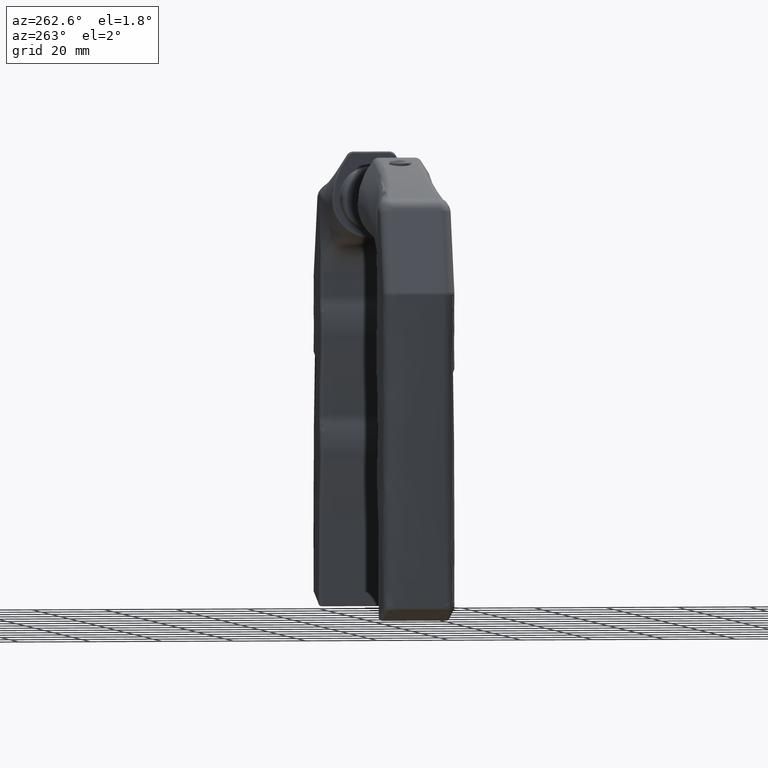
[diagram: clean part render]
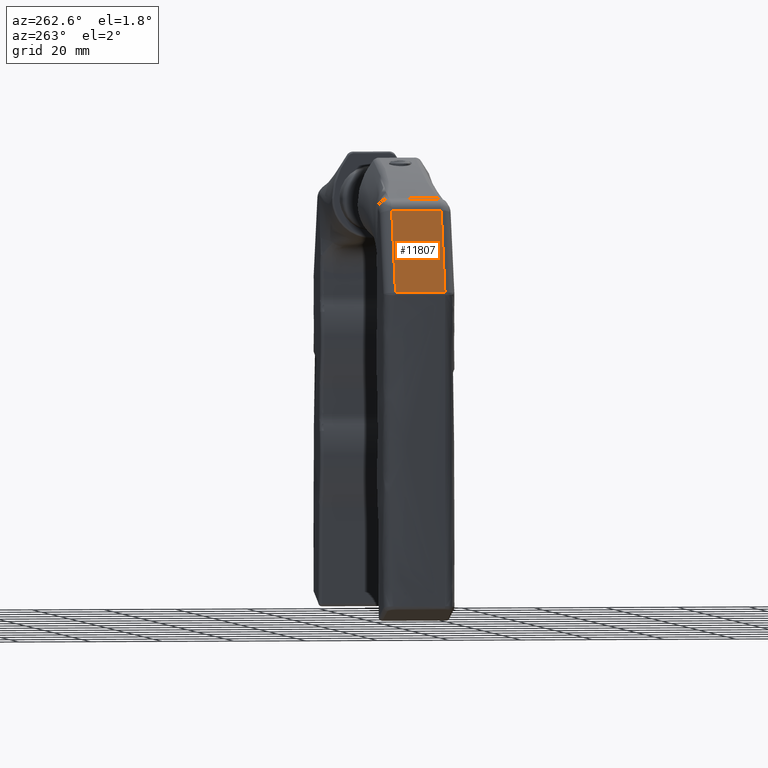
[diagram: same view with one face highlighted and labeled with its STEP entity id]
A machine part, auxiliary view. The second image highlights one B-rep face of the part: STEP entity #11807.
In plain terms, the highlighted planar face has unit normal (-0.9397, -0, 0.342).
Its self-contained STEP definition (entity closure, byte-faithful):
#61 = ORIENTED_EDGE ( 'NONE', *, *, #15423, .T. ) ;
#419 = EDGE_CURVE ( 'NONE', #9878, #9517, #695, .T. ) ;
#695 = LINE ( 'NONE', #14502, #3370 ) ;
#721 = AXIS2_PLACEMENT_3D ( 'NONE', #7952, #11653, #1826 ) ;
#1751 = ORIENTED_EDGE ( 'NONE', *, *, #419, .T. ) ;
#1826 = DIRECTION ( 'NONE',  ( -0.9396926207859092051, 0.000000000000000000, -0.3420201433256664925 ) ) ;
#3298 = EDGE_LOOP ( 'NONE', ( #1751, #61, #5515, #10816 ) ) ;
#3370 = VECTOR ( 'NONE', #12073, 1000.000000000000000 ) ;
#3567 = FACE_OUTER_BOUND ( 'NONE', #3298, .T. ) ;
#3575 = CARTESIAN_POINT ( 'NONE',  ( -22.91800587202784101, -5.566666666666695740, -50.87938524157182485 ) ) ;
#4171 = LINE ( 'NONE', #13009, #12188 ) ;
#5024 = CARTESIAN_POINT ( 'NONE',  ( -22.91800587202782680, -6.900000000000049205, -50.87938524157181774 ) ) ;
#5515 = ORIENTED_EDGE ( 'NONE', *, *, #7268, .T. ) ;
#5649 = CARTESIAN_POINT ( 'NONE',  ( -22.91800587202782680, -6.900000000000049205, -50.87938524157181774 ) ) ;
#6148 = CARTESIAN_POINT ( 'NONE',  ( -22.91800587202778061, -2.900000000000012790, -50.87938524157180353 ) ) ;
#6244 = CARTESIAN_POINT ( 'NONE',  ( -22.91800587202778061, -4.233333333333366255, -50.87938524157180353 ) ) ;
#6897 = VERTEX_POINT ( 'NONE', #9842 ) ;
#7268 = EDGE_CURVE ( 'NONE', #6897, #9486, #4171, .T. ) ;
#7765 = B_SPLINE_CURVE_WITH_KNOTS ( 'NONE', 3,
 ( #5024, #3575, #6244, #6148, #8429, #8537, #8483 ),
 .UNSPECIFIED., .F., .F.,
 ( 4, 3, 4 ),
 ( 0.000000000000000000, 0.004000000000000000083, 0.01380000000000000324 ),
 .UNSPECIFIED. ) ;
#7918 = CARTESIAN_POINT ( 'NONE',  ( -0.4195193475271187800, 6.900000000000049205, -42.69060583061434500 ) ) ;
#7952 = CARTESIAN_POINT ( 'NONE',  ( 1.750607802737900842, -9.900000000000050093, -41.90074414334495145 ) ) ;
#8429 = CARTESIAN_POINT ( 'NONE',  ( -22.91800587202778061, 0.3666666666666947849, -50.87938524157180353 ) ) ;
#8483 = CARTESIAN_POINT ( 'NONE',  ( -22.91800587202779482, 6.900000000000049205, -50.87938524157181774 ) ) ;
#8537 = CARTESIAN_POINT ( 'NONE',  ( -22.91800587202779482, 3.633333333333341741, -50.87938524157181774 ) ) ;
#9127 = PLANE ( 'NONE',  #721 ) ;
#9486 = VERTEX_POINT ( 'NONE', #7918 ) ;
#9517 = VERTEX_POINT ( 'NONE', #5649 ) ;
#9842 = CARTESIAN_POINT ( 'NONE',  ( -22.91800587202779482, 6.900000000000049205, -50.87938524157181774 ) ) ;
#9878 = VERTEX_POINT ( 'NONE', #14117 ) ;
#9890 = DIRECTION ( 'NONE',  ( -0.000000000000000000, -1.000000000000000000, -0.000000000000000000 ) ) ;
#10636 = DIRECTION ( 'NONE',  ( 0.9396926207859092051, -0.000000000000000000, 0.3420201433256664925 ) ) ;
#10816 = ORIENTED_EDGE ( 'NONE', *, *, #12129, .T. ) ;
#11653 = DIRECTION ( 'NONE',  ( 0.3420201433256664925, 0.000000000000000000, -0.9396926207859092051 ) ) ;
#11807 = ADVANCED_FACE ( 'NONE', ( #3567 ), #9127, .T. ) ;
#11967 = VECTOR ( 'NONE', #9890, 1000.000000000000000 ) ;
#12073 = DIRECTION ( 'NONE',  ( -0.9396926207859092051, 0.000000000000000000, -0.3420201433256664925 ) ) ;
#12129 = EDGE_CURVE ( 'NONE', #9486, #9878, #15531, .T. ) ;
#12188 = VECTOR ( 'NONE', #10636, 1000.000000000000000 ) ;
#13009 = CARTESIAN_POINT ( 'NONE',  ( 1.750607802737895291, 6.900000000000049205, -41.90074414334495145 ) ) ;
#14117 = CARTESIAN_POINT ( 'NONE',  ( -0.4195193475271183359, -6.900000000000049205, -42.69060583061434500 ) ) ;
#14502 = CARTESIAN_POINT ( 'NONE',  ( 1.750607802737900842, -6.900000000000049205, -41.90074414334495145 ) ) ;
#14762 = CARTESIAN_POINT ( 'NONE',  ( -0.4195193475271187800, -9.900000000000050093, -42.69060583061434500 ) ) ;
#15423 = EDGE_CURVE ( 'NONE', #9517, #6897, #7765, .T. ) ;
#15531 = LINE ( 'NONE', #14762, #11967 ) ;